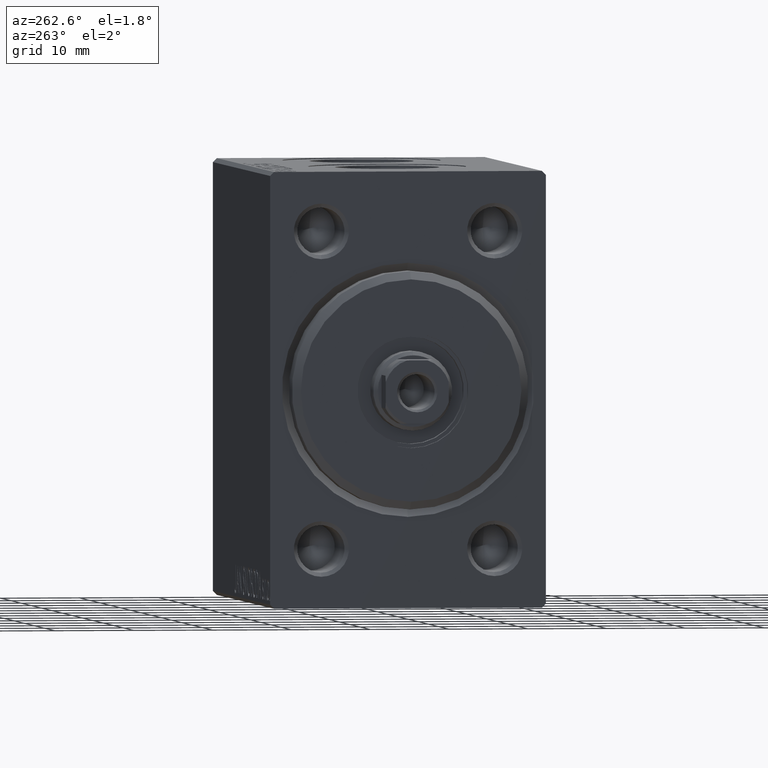
[diagram: clean part render]
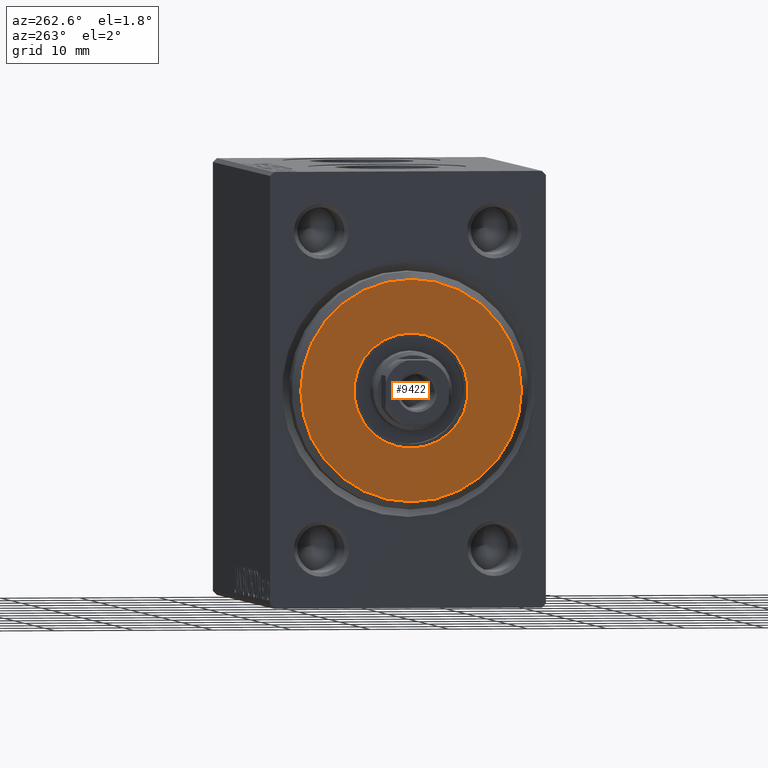
[diagram: same view with one face highlighted and labeled with its STEP entity id]
A machine part, auxiliary view. The second image highlights one B-rep face of the part: STEP entity #9422.
In plain terms, the highlighted planar face has unit normal (-1, 0, 0).
Its self-contained STEP definition (entity closure, byte-faithful):
#1144 = DIRECTION ( 'NONE',  ( 0.000000000000000000, 0.000000000000000000, -1.000000000000000000 ) ) ;
#2282 = EDGE_LOOP ( 'NONE', ( #2554, #40955 ) ) ;
#2315 = EDGE_LOOP ( 'NONE', ( #22083, #30033 ) ) ;
#2554 = ORIENTED_EDGE ( 'NONE', *, *, #30213, .F. ) ;
#2980 = FACE_OUTER_BOUND ( 'NONE', #2315, .T. ) ;
#4246 = DIRECTION ( 'NONE',  ( 1.000000000000000000, 0.000000000000000000, 0.000000000000000000 ) ) ;
#5441 = CIRCLE ( 'NONE', #16882, 7.249999999999999112 ) ;
#7740 = EDGE_CURVE ( 'NONE', #21683, #28105, #10763, .T. ) ;
#8331 = CARTESIAN_POINT ( 'NONE',  ( 3.000000000000000000, 0.000000000000000000, 0.000000000000000000 ) ) ;
#9422 = ADVANCED_FACE ( 'NONE', ( #2980, #15987 ), #10170, .T. ) ;
#10170 = PLANE ( 'NONE',  #35873 ) ;
#10763 = CIRCLE ( 'NONE', #30080, 13.99999999999999645 ) ;
#10980 = CIRCLE ( 'NONE', #28180, 13.99999999999999645 ) ;
#12890 = CARTESIAN_POINT ( 'NONE',  ( 3.000000000000000000, 0.000000000000000000, -7.249999999999999112 ) ) ;
#13128 = AXIS2_PLACEMENT_3D ( 'NONE', #38762, #4246, #21485 ) ;
#15987 = FACE_BOUND ( 'NONE', #2282, .T. ) ;
#16559 = VERTEX_POINT ( 'NONE', #12890 ) ;
#16882 = AXIS2_PLACEMENT_3D ( 'NONE', #20782, #24390, #41216 ) ;
#17543 = EDGE_CURVE ( 'NONE', #28307, #16559, #25296, .T. ) ;
#19789 = CARTESIAN_POINT ( 'NONE',  ( 3.000000000000000000, 0.000000000000000000, 0.000000000000000000 ) ) ;
#20782 = CARTESIAN_POINT ( 'NONE',  ( 3.000000000000000000, 0.000000000000000000, 0.000000000000000000 ) ) ;
#21485 = DIRECTION ( 'NONE',  ( 0.000000000000000000, 0.000000000000000000, -1.000000000000000000 ) ) ;
#21683 = VERTEX_POINT ( 'NONE', #37326 ) ;
#22083 = ORIENTED_EDGE ( 'NONE', *, *, #23266, .T. ) ;
#22185 = CARTESIAN_POINT ( 'NONE',  ( 3.000000000000000000, 8.878689293818310074E-16, 7.249999999999999112 ) ) ;
#22946 = DIRECTION ( 'NONE',  ( 0.000000000000000000, 0.000000000000000000, -1.000000000000000000 ) ) ;
#23266 = EDGE_CURVE ( 'NONE', #28105, #21683, #10980, .T. ) ;
#24390 = DIRECTION ( 'NONE',  ( 1.000000000000000000, 0.000000000000000000, 0.000000000000000000 ) ) ;
#25296 = CIRCLE ( 'NONE', #13128, 7.249999999999999112 ) ;
#25506 = DIRECTION ( 'NONE',  ( 0.000000000000000000, 0.000000000000000000, -1.000000000000000000 ) ) ;
#28105 = VERTEX_POINT ( 'NONE', #31188 ) ;
#28180 = AXIS2_PLACEMENT_3D ( 'NONE', #35811, #36040, #25506 ) ;
#28307 = VERTEX_POINT ( 'NONE', #22185 ) ;
#30033 = ORIENTED_EDGE ( 'NONE', *, *, #7740, .T. ) ;
#30080 = AXIS2_PLACEMENT_3D ( 'NONE', #8331, #39263, #1144 ) ;
#30213 = EDGE_CURVE ( 'NONE', #16559, #28307, #5441, .T. ) ;
#31188 = CARTESIAN_POINT ( 'NONE',  ( 3.000000000000000000, 0.000000000000000000, 13.99999999999999645 ) ) ;
#35811 = CARTESIAN_POINT ( 'NONE',  ( 3.000000000000000000, 0.000000000000000000, 0.000000000000000000 ) ) ;
#35873 = AXIS2_PLACEMENT_3D ( 'NONE', #19789, #37075, #22946 ) ;
#36040 = DIRECTION ( 'NONE',  ( 1.000000000000000000, -0.000000000000000000, 0.000000000000000000 ) ) ;
#37075 = DIRECTION ( 'NONE',  ( 1.000000000000000000, -0.000000000000000000, 0.000000000000000000 ) ) ;
#37326 = CARTESIAN_POINT ( 'NONE',  ( 3.000000000000000000, 1.775737858763662015E-15, -13.99999999999999645 ) ) ;
#38762 = CARTESIAN_POINT ( 'NONE',  ( 3.000000000000000000, 0.000000000000000000, 0.000000000000000000 ) ) ;
#39263 = DIRECTION ( 'NONE',  ( 1.000000000000000000, -0.000000000000000000, 0.000000000000000000 ) ) ;
#40955 = ORIENTED_EDGE ( 'NONE', *, *, #17543, .F. ) ;
#41216 = DIRECTION ( 'NONE',  ( 0.000000000000000000, 0.000000000000000000, -1.000000000000000000 ) ) ;